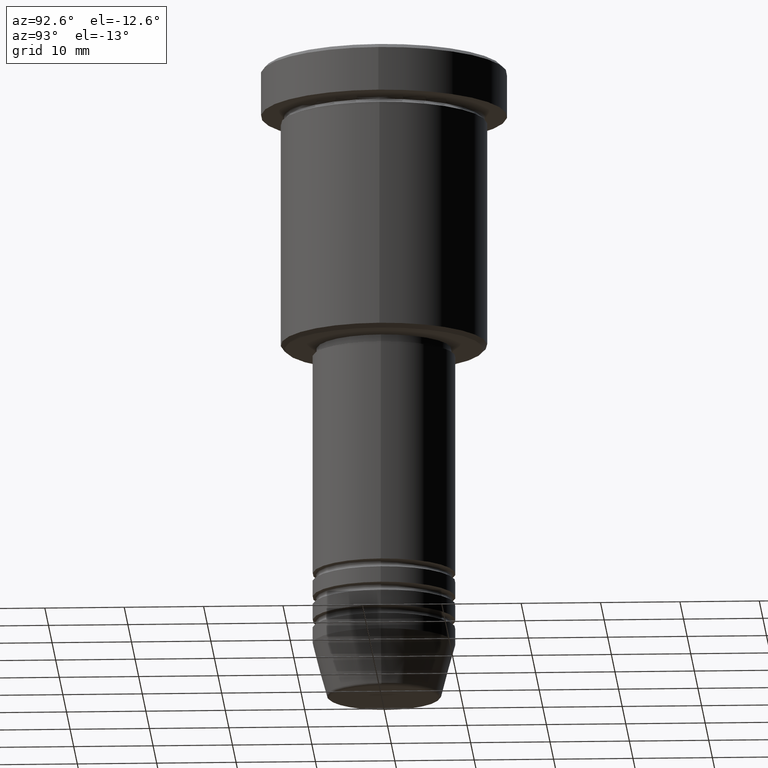
[diagram: clean part render]
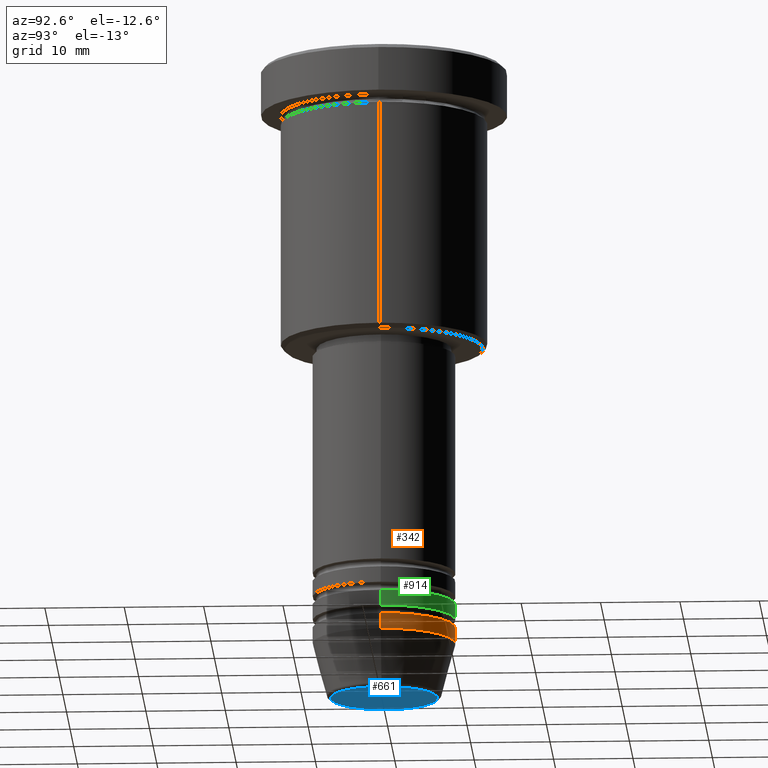
[diagram: same view with three faces highlighted in distinct colors, each labeled with its STEP entity id]
A machine part, auxiliary view with three faces highlighted in distinct colors.
Their STEP definitions:

[orange] entity #342 — the highlighted cylindrical surface (partial cylindrical patch) has radius 9 mm, axis along (-0, -0, 1).
#17 = DIRECTION ( 'NONE',  ( 1.000000000000000000, 0.000000000000000000, 0.000000000000000000 ) ) ;
#45 = CARTESIAN_POINT ( 'NONE',  ( 0.000000000000000000, 0.000000000000000000, 0.000000000000000000 ) ) ;
#110 = CARTESIAN_POINT ( 'NONE',  ( 9.000000000000000000, 0.000000000000000000, -72.00000000000000000 ) ) ;
#145 = VERTEX_POINT ( 'NONE', #110 ) ;
#180 = DIRECTION ( 'NONE',  ( -0.000000000000000000, -0.000000000000000000, 1.000000000000000000 ) ) ;
#199 = VECTOR ( 'NONE', #1084, 1000.000000000000000 ) ;
#238 = CIRCLE ( 'NONE', #776, 9.000000000000000000 ) ;
#330 = CARTESIAN_POINT ( 'NONE',  ( -9.000000000000000000, 1.102182119232617714E-15, -72.00000000000000000 ) ) ;
#342 = ADVANCED_FACE ( 'NONE', ( #499 ), #872, .T. ) ;
#344 = CIRCLE ( 'NONE', #658, 9.000000000000000000 ) ;
#443 = LINE ( 'NONE', #1179, #199 ) ;
#448 = VERTEX_POINT ( 'NONE', #541 ) ;
#470 = VERTEX_POINT ( 'NONE', #330 ) ;
#479 = DIRECTION ( 'NONE',  ( 1.000000000000000000, 0.000000000000000000, 0.000000000000000000 ) ) ;
#487 = CARTESIAN_POINT ( 'NONE',  ( 0.000000000000000000, 0.000000000000000000, -74.00000000000000000 ) ) ;
#497 = ORIENTED_EDGE ( 'NONE', *, *, #610, .F. ) ;
#499 = FACE_OUTER_BOUND ( 'NONE', #504, .T. ) ;
#504 = EDGE_LOOP ( 'NONE', ( #1002, #1011, #497, #989 ) ) ;
#539 = DIRECTION ( 'NONE',  ( -0.000000000000000000, -0.000000000000000000, 1.000000000000000000 ) ) ;
#541 = CARTESIAN_POINT ( 'NONE',  ( 9.000000000000000000, 0.000000000000000000, -74.00000000000000000 ) ) ;
#546 = LINE ( 'NONE', #1111, #932 ) ;
#556 = EDGE_CURVE ( 'NONE', #448, #145, #443, .T. ) ;
#610 = EDGE_CURVE ( 'NONE', #145, #470, #238, .T. ) ;
#658 = AXIS2_PLACEMENT_3D ( 'NONE', #487, #680, #479 ) ;
#673 = EDGE_CURVE ( 'NONE', #448, #946, #344, .T. ) ;
#680 = DIRECTION ( 'NONE',  ( -0.000000000000000000, -0.000000000000000000, 1.000000000000000000 ) ) ;
#736 = CARTESIAN_POINT ( 'NONE',  ( 0.000000000000000000, 0.000000000000000000, -72.00000000000000000 ) ) ;
#776 = AXIS2_PLACEMENT_3D ( 'NONE', #736, #539, #17 ) ;
#802 = CARTESIAN_POINT ( 'NONE',  ( -9.000000000000000000, 1.102182119232617714E-15, -74.00000000000000000 ) ) ;
#872 = CYLINDRICAL_SURFACE ( 'NONE', #1161, 9.000000000000000000 ) ;
#932 = VECTOR ( 'NONE', #180, 1000.000000000000000 ) ;
#946 = VERTEX_POINT ( 'NONE', #802 ) ;
#989 = ORIENTED_EDGE ( 'NONE', *, *, #556, .F. ) ;
#1002 = ORIENTED_EDGE ( 'NONE', *, *, #673, .T. ) ;
#1011 = ORIENTED_EDGE ( 'NONE', *, *, #1130, .T. ) ;
#1050 = DIRECTION ( 'NONE',  ( -0.000000000000000000, -0.000000000000000000, 1.000000000000000000 ) ) ;
#1084 = DIRECTION ( 'NONE',  ( -0.000000000000000000, -0.000000000000000000, 1.000000000000000000 ) ) ;
#1111 = CARTESIAN_POINT ( 'NONE',  ( -9.000000000000000000, 1.102182119232617714E-15, 0.000000000000000000 ) ) ;
#1130 = EDGE_CURVE ( 'NONE', #946, #470, #546, .T. ) ;
#1140 = DIRECTION ( 'NONE',  ( 1.000000000000000000, 0.000000000000000000, 0.000000000000000000 ) ) ;
#1161 = AXIS2_PLACEMENT_3D ( 'NONE', #45, #1050, #1140 ) ;
#1179 = CARTESIAN_POINT ( 'NONE',  ( 9.000000000000000000, 0.000000000000000000, 0.000000000000000000 ) ) ;

[blue] entity #661 — the highlighted planar face has unit normal (0, -0, 1).
#51 = VERTEX_POINT ( 'NONE', #795 ) ;
#96 = VERTEX_POINT ( 'NONE', #1066 ) ;
#134 = CIRCLE ( 'NONE', #886, 6.740692158992658278 ) ;
#138 = DIRECTION ( 'NONE',  ( 1.000000000000000000, 0.000000000000000000, 0.000000000000000000 ) ) ;
#204 = CARTESIAN_POINT ( 'NONE',  ( 0.000000000000000000, 0.000000000000000000, -80.99999999999998579 ) ) ;
#257 = AXIS2_PLACEMENT_3D ( 'NONE', #204, #467, #562 ) ;
#280 = CIRCLE ( 'NONE', #1150, 6.740692158992658278 ) ;
#283 = DIRECTION ( 'NONE',  ( 1.000000000000000000, 0.000000000000000000, 0.000000000000000000 ) ) ;
#325 = CARTESIAN_POINT ( 'NONE',  ( 0.000000000000000000, 0.000000000000000000, -80.99999999999998579 ) ) ;
#336 = EDGE_CURVE ( 'NONE', #51, #96, #134, .T. ) ;
#383 = FACE_OUTER_BOUND ( 'NONE', #1178, .T. ) ;
#467 = DIRECTION ( 'NONE',  ( 0.000000000000000000, -0.000000000000000000, 1.000000000000000000 ) ) ;
#562 = DIRECTION ( 'NONE',  ( 1.000000000000000000, 0.000000000000000000, 0.000000000000000000 ) ) ;
#566 = PLANE ( 'NONE',  #257 ) ;
#571 = ORIENTED_EDGE ( 'NONE', *, *, #1077, .T. ) ;
#591 = DIRECTION ( 'NONE',  ( 0.000000000000000000, 0.000000000000000000, -1.000000000000000000 ) ) ;
#661 = ADVANCED_FACE ( 'NONE', ( #383 ), #566, .F. ) ;
#795 = CARTESIAN_POINT ( 'NONE',  ( 6.740692158992658278, 0.000000000000000000, -80.99999999999998579 ) ) ;
#886 = AXIS2_PLACEMENT_3D ( 'NONE', #325, #591, #138 ) ;
#909 = CARTESIAN_POINT ( 'NONE',  ( 0.000000000000000000, 0.000000000000000000, -80.99999999999998579 ) ) ;
#1066 = CARTESIAN_POINT ( 'NONE',  ( -6.740692158992658278, 8.550696569392689626E-16, -80.99999999999998579 ) ) ;
#1077 = EDGE_CURVE ( 'NONE', #96, #51, #280, .T. ) ;
#1138 = ORIENTED_EDGE ( 'NONE', *, *, #336, .T. ) ;
#1150 = AXIS2_PLACEMENT_3D ( 'NONE', #909, #1180, #283 ) ;
#1178 = EDGE_LOOP ( 'NONE', ( #1138, #571 ) ) ;
#1180 = DIRECTION ( 'NONE',  ( 0.000000000000000000, 0.000000000000000000, -1.000000000000000000 ) ) ;

[green] entity #914 — the highlighted cylindrical surface (partial cylindrical patch) has radius 9 mm, axis along (-0, -0, 1).
#2 = LINE ( 'NONE', #1109, #462 ) ;
#22 = CARTESIAN_POINT ( 'NONE',  ( 9.000000000000000000, 0.000000000000000000, -70.99999999999998579 ) ) ;
#83 = DIRECTION ( 'NONE',  ( 1.000000000000000000, 0.000000000000000000, 0.000000000000000000 ) ) ;
#121 = CARTESIAN_POINT ( 'NONE',  ( -9.000000000000000000, 1.102182119232617714E-15, -70.99999999999998579 ) ) ;
#147 = DIRECTION ( 'NONE',  ( 1.000000000000000000, 0.000000000000000000, 0.000000000000000000 ) ) ;
#216 = DIRECTION ( 'NONE',  ( 1.000000000000000000, 0.000000000000000000, 0.000000000000000000 ) ) ;
#247 = CARTESIAN_POINT ( 'NONE',  ( -9.000000000000000000, 1.102182119232617714E-15, -68.99999999999997158 ) ) ;
#297 = LINE ( 'NONE', #522, #311 ) ;
#311 = VECTOR ( 'NONE', #665, 1000.000000000000000 ) ;
#340 = FACE_OUTER_BOUND ( 'NONE', #412, .T. ) ;
#370 = ORIENTED_EDGE ( 'NONE', *, *, #818, .F. ) ;
#378 = DIRECTION ( 'NONE',  ( -0.000000000000000000, -0.000000000000000000, 1.000000000000000000 ) ) ;
#399 = CARTESIAN_POINT ( 'NONE',  ( 0.000000000000000000, 0.000000000000000000, -70.99999999999998579 ) ) ;
#412 = EDGE_LOOP ( 'NONE', ( #973, #492, #370, #906 ) ) ;
#462 = VECTOR ( 'NONE', #833, 1000.000000000000000 ) ;
#492 = ORIENTED_EDGE ( 'NONE', *, *, #904, .T. ) ;
#522 = CARTESIAN_POINT ( 'NONE',  ( -9.000000000000000000, 1.102182119232617714E-15, 0.000000000000000000 ) ) ;
#574 = CIRCLE ( 'NONE', #1008, 9.000000000000000000 ) ;
#575 = AXIS2_PLACEMENT_3D ( 'NONE', #992, #786, #147 ) ;
#616 = CARTESIAN_POINT ( 'NONE',  ( 0.000000000000000000, 0.000000000000000000, -68.99999999999997158 ) ) ;
#645 = EDGE_CURVE ( 'NONE', #799, #663, #574, .T. ) ;
#656 = CARTESIAN_POINT ( 'NONE',  ( 9.000000000000000000, 0.000000000000000000, -68.99999999999997158 ) ) ;
#663 = VERTEX_POINT ( 'NONE', #121 ) ;
#665 = DIRECTION ( 'NONE',  ( -0.000000000000000000, -0.000000000000000000, 1.000000000000000000 ) ) ;
#728 = DIRECTION ( 'NONE',  ( -0.000000000000000000, -0.000000000000000000, 1.000000000000000000 ) ) ;
#762 = VERTEX_POINT ( 'NONE', #247 ) ;
#771 = VERTEX_POINT ( 'NONE', #656 ) ;
#779 = EDGE_CURVE ( 'NONE', #799, #771, #2, .T. ) ;
#786 = DIRECTION ( 'NONE',  ( -0.000000000000000000, -0.000000000000000000, 1.000000000000000000 ) ) ;
#799 = VERTEX_POINT ( 'NONE', #22 ) ;
#818 = EDGE_CURVE ( 'NONE', #771, #762, #952, .T. ) ;
#833 = DIRECTION ( 'NONE',  ( -0.000000000000000000, -0.000000000000000000, 1.000000000000000000 ) ) ;
#896 = CYLINDRICAL_SURFACE ( 'NONE', #575, 9.000000000000000000 ) ;
#904 = EDGE_CURVE ( 'NONE', #663, #762, #297, .T. ) ;
#906 = ORIENTED_EDGE ( 'NONE', *, *, #779, .F. ) ;
#914 = ADVANCED_FACE ( 'NONE', ( #340 ), #896, .T. ) ;
#952 = CIRCLE ( 'NONE', #1100, 9.000000000000000000 ) ;
#973 = ORIENTED_EDGE ( 'NONE', *, *, #645, .T. ) ;
#992 = CARTESIAN_POINT ( 'NONE',  ( 0.000000000000000000, 0.000000000000000000, 0.000000000000000000 ) ) ;
#1008 = AXIS2_PLACEMENT_3D ( 'NONE', #399, #378, #216 ) ;
#1100 = AXIS2_PLACEMENT_3D ( 'NONE', #616, #728, #83 ) ;
#1109 = CARTESIAN_POINT ( 'NONE',  ( 9.000000000000000000, 0.000000000000000000, 0.000000000000000000 ) ) ;